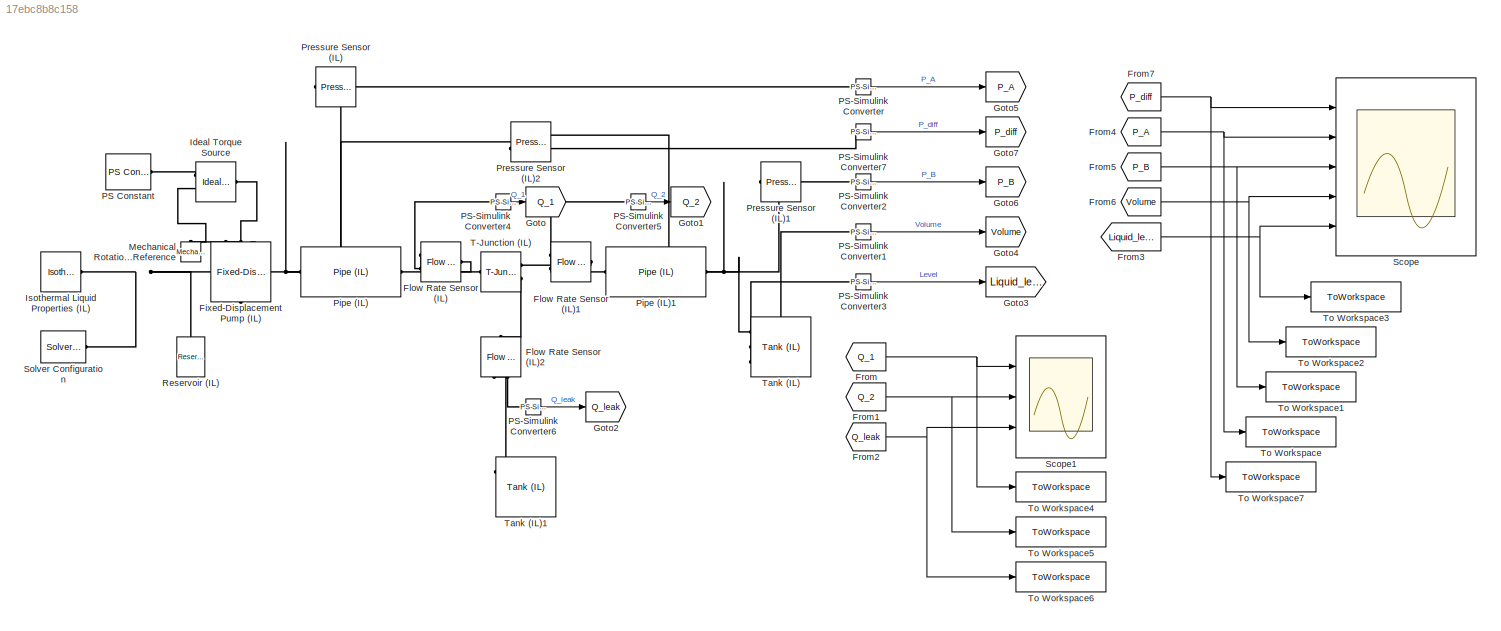
MODEL slx_17ebc8b8c158
KIND model
CONFIG AbsTol = 1e-3
CONFIG EnableMultiTasking = off
CONFIG FixedStep = auto
CONFIG MaxStep = auto
CONFIG MinStep = auto
CONFIG RelTol = 1e-3
CONFIG SampleTimeConstraint = Unconstrained
CONFIG SolverName = VariableStepAuto
CONFIG StartTime = 0.0
CONFIG StopTime = 5
BLOCK [Reference] Fixed-Displacement Pump (IL)  REF=SimscapeFluids_lib/Isothermal Liquid/Pumps & Motors/Fixed-Displacement
Pump (IL)
  NameLocation = left
  Ports = [0, 0, 0, 0, 0, 1, 3]
  SourceBlock = SimscapeFluids_lib/Isothermal Liquid/Pumps & Motors/Fixed-Displacement\nPump (IL)
  SourceProductBaseCode = SH
  SourceType = Fixed-Displacement\nPump (IL)
BLOCK [Reference] Flow Rate Sensor (IL)  REF=fl_lib/Isothermal Liquid/Sensors/Flow Rate Sensor
(IL)
  Ports = [0, 0, 0, 0, 0, 1, 2]
  SourceBlock = fl_lib/Isothermal Liquid/Sensors/Flow Rate Sensor\n(IL)
  SourceProductBaseCode = PW,SS,VE
  SourceType = Flow Rate Sensor\n(IL)
BLOCK [Reference] Flow Rate Sensor (IL)1  REF=fl_lib/Isothermal Liquid/Sensors/Flow Rate Sensor
(IL)
  Ports = [0, 0, 0, 0, 0, 1, 2]
  SourceBlock = fl_lib/Isothermal Liquid/Sensors/Flow Rate Sensor\n(IL)
  SourceProductBaseCode = PW,SS,VE
  SourceType = Flow Rate Sensor\n(IL)
BLOCK [Reference] Flow Rate Sensor (IL)2  REF=fl_lib/Isothermal Liquid/Sensors/Flow Rate Sensor
(IL)
  NameLocation = left
  Ports = [0, 0, 0, 0, 0, 1, 2]
  SourceBlock = fl_lib/Isothermal Liquid/Sensors/Flow Rate Sensor\n(IL)
  SourceProductBaseCode = PW,SS,VE
  SourceType = Flow Rate Sensor\n(IL)
BLOCK [From] From
  GotoTag = Q_1
BLOCK [From] From1
  GotoTag = Q_2
BLOCK [From] From2
  GotoTag = Q_leak
BLOCK [From] From3
  GotoTag = Liquid_level
BLOCK [From] From4
  GotoTag = P_A
BLOCK [From] From5
  GotoTag = P_B
BLOCK [From] From6
  GotoTag = Volume
BLOCK [From] From7
  GotoTag = P_diff
BLOCK [Goto] Goto
  GotoTag = Q_1
BLOCK [Goto] Goto1
  GotoTag = Q_2
BLOCK [Goto] Goto2
  GotoTag = Q_leak
BLOCK [Goto] Goto3
  GotoTag = Liquid_level
BLOCK [Goto] Goto4
  GotoTag = Volume
BLOCK [Goto] Goto5
  GotoTag = P_A
BLOCK [Goto] Goto6
  GotoTag = P_B
BLOCK [Goto] Goto7
  GotoTag = P_diff
BLOCK [Reference] Ideal Torque Source  REF=fl_lib/Mechanical/Mechanical Sources/Ideal Torque Source
  Ports = [0, 0, 0, 0, 0, 1, 2]
  SourceBlock = fl_lib/Mechanical/Mechanical Sources/Ideal Torque Source
  SourceProductBaseCode = PW,SS,VE
  SourceType = Ideal Torque Source
BLOCK [Reference] Isothermal Liquid Properties (IL)  REF=fl_lib/Isothermal Liquid/Utilities/Isothermal Liquid
Properties (IL)
  Ports = [0, 0, 0, 0, 0, 0, 1]
  SourceBlock = fl_lib/Isothermal Liquid/Utilities/Isothermal Liquid\nProperties (IL)
  SourceProductBaseCode = PW,SS,VE
  SourceType = Isothermal Liquid\nProperties (IL)
BLOCK [Reference] Mechanical Rotational Reference  REF=fl_lib/Mechanical/Rotational Elements/Mechanical
Rotational Reference
  NameLocation = right
  Ports = [0, 0, 0, 0, 0, 1]
  SourceBlock = fl_lib/Mechanical/Rotational Elements/Mechanical\nRotational Reference
  SourceProductBaseCode = PW,SS,VE
  SourceType = Mechanical\nRotational Reference
BLOCK [Reference] PS Constant  REF=fl_lib/Physical Signals/Sources/PS Constant
  Ports = [0, 0, 0, 0, 0, 0, 1]
  SourceBlock = fl_lib/Physical Signals/Sources/PS Constant
  SourceProductBaseCode = PW,SS,VE
  SourceType = PS Constant
BLOCK [Reference] PS-Simulink Converter  REF=nesl_utility/PS-Simulink
Converter
  Ports = [0, 1, 0, 0, 0, 1]
  SourceBlock = nesl_utility/PS-Simulink\nConverter
  SourceProductBaseCode = SS,PW,VE
  SourceType = PS-Simulink\nConverter
BLOCK [Reference] PS-Simulink Converter1  REF=nesl_utility/PS-Simulink
Converter
  Ports = [0, 1, 0, 0, 0, 1]
  SourceBlock = nesl_utility/PS-Simulink\nConverter
  SourceProductBaseCode = SS,PW,VE
  SourceType = PS-Simulink\nConverter
BLOCK [Reference] PS-Simulink Converter2  REF=nesl_utility/PS-Simulink
Converter
  Ports = [0, 1, 0, 0, 0, 1]
  SourceBlock = nesl_utility/PS-Simulink\nConverter
  SourceProductBaseCode = SS,PW,VE
  SourceType = PS-Simulink\nConverter
BLOCK [Reference] PS-Simulink Converter3  REF=nesl_utility/PS-Simulink
Converter
  Ports = [0, 1, 0, 0, 0, 1]
  SourceBlock = nesl_utility/PS-Simulink\nConverter
  SourceProductBaseCode = SS,PW,VE
  SourceType = PS-Simulink\nConverter
BLOCK [Reference] PS-Simulink Converter4  REF=nesl_utility/PS-Simulink
Converter
  Ports = [0, 1, 0, 0, 0, 1]
  SourceBlock = nesl_utility/PS-Simulink\nConverter
  SourceProductBaseCode = SS,PW,VE
  SourceType = PS-Simulink\nConverter
BLOCK [Reference] PS-Simulink Converter5  REF=nesl_utility/PS-Simulink
Converter
  Ports = [0, 1, 0, 0, 0, 1]
  SourceBlock = nesl_utility/PS-Simulink\nConverter
  SourceProductBaseCode = SS,PW,VE
  SourceType = PS-Simulink\nConverter
BLOCK [Reference] PS-Simulink Converter6  REF=nesl_utility/PS-Simulink
Converter
  Ports = [0, 1, 0, 0, 0, 1]
  SourceBlock = nesl_utility/PS-Simulink\nConverter
  SourceProductBaseCode = SS,PW,VE
  SourceType = PS-Simulink\nConverter
BLOCK [Reference] PS-Simulink Converter7  REF=nesl_utility/PS-Simulink
Converter
  Ports = [0, 1, 0, 0, 0, 1]
  SourceBlock = nesl_utility/PS-Simulink\nConverter
  SourceProductBaseCode = SS,PW,VE
  SourceType = PS-Simulink\nConverter
BLOCK [Reference] Pipe (IL)  REF=SimscapeFluids_lib/Isothermal Liquid/Pipes & Fittings/Pipe (IL)
  Ports = [0, 0, 0, 0, 0, 1, 1]
  SourceBlock = SimscapeFluids_lib/Isothermal Liquid/Pipes & Fittings/Pipe (IL)
  SourceProductBaseCode = SH
  SourceType = Pipe (IL)
BLOCK [Reference] Pipe (IL)1  REF=SimscapeFluids_lib/Isothermal Liquid/Pipes & Fittings/Pipe (IL)
  Ports = [0, 0, 0, 0, 0, 1, 1]
  SourceBlock = SimscapeFluids_lib/Isothermal Liquid/Pipes & Fittings/Pipe (IL)
  SourceProductBaseCode = SH
  SourceType = Pipe (IL)
BLOCK [Reference] Pressure Sensor (IL)  REF=fl_lib/Isothermal Liquid/Sensors/Pressure Sensor (IL)
  Ports = [0, 0, 0, 0, 0, 1, 1]
  SourceBlock = fl_lib/Isothermal Liquid/Sensors/Pressure Sensor (IL)
  SourceProductBaseCode = PW,SS,VE
  SourceType = Pressure Sensor (IL)
BLOCK [Reference] Pressure Sensor (IL)1  REF=fl_lib/Isothermal Liquid/Sensors/Pressure Sensor (IL)
  Ports = [0, 0, 0, 0, 0, 1, 1]
  SourceBlock = fl_lib/Isothermal Liquid/Sensors/Pressure Sensor (IL)
  SourceProductBaseCode = PW,SS,VE
  SourceType = Pressure Sensor (IL)
BLOCK [Reference] Pressure Sensor (IL)2  REF=fl_lib/Isothermal Liquid/Sensors/Pressure Sensor (IL)
  Ports = [0, 0, 0, 0, 0, 1, 2]
  SourceBlock = fl_lib/Isothermal Liquid/Sensors/Pressure Sensor (IL)
  SourceProductBaseCode = PW,SS,VE
  SourceType = Pressure Sensor (IL)
BLOCK [Reference] Reservoir (IL)  REF=fl_lib/Isothermal Liquid/Elements/Reservoir (IL)
  NameLocation = right
  Ports = [0, 0, 0, 0, 0, 1]
  SourceBlock = fl_lib/Isothermal Liquid/Elements/Reservoir (IL)
  SourceProductBaseCode = PW,SS,VE
  SourceType = Reservoir (IL)
BLOCK [Scope] Scope
  Floating = off
  NumInputPorts = 5
  Ports = [5]
  ScopeSpecificationString = Simulink.scopes.TimeScopeBlockCfg('CurrentConfiguration', extmgr.ConfigurationSet(extmgr.Configuration('Core','General UI',true),extmgr.Configuration('Core','Source UI',true),extmgr.Configuration('Sources','WiredSimulink',true),extmgr.Configuration('Visuals','Time Domain',true,'SerializedDisplays',{struct('MinYLimReal','-1.00000','MaxYLimReal','1.00000','YLabelReal','','MinYLimMag','0.00000','MaxY...<+3615ch>
BLOCK [Scope] Scope1
  Floating = off
  NumInputPorts = 3
  Ports = [3]
  ScopeSpecificationString = Simulink.scopes.TimeScopeBlockCfg('CurrentConfiguration', extmgr.ConfigurationSet(extmgr.Configuration('Core','General UI',true),extmgr.Configuration('Core','Source UI',true),extmgr.Configuration('Sources','WiredSimulink',true,'DataLoggingVariableName','ScopeData1'),extmgr.Configuration('Visuals','Time Domain',true,'SerializedDisplays',{struct('MinYLimReal','-180.52363','MaxYLimReal','777.03776','...<+1496ch>
BLOCK [Reference] Solver Configuration  REF=nesl_utility/Solver
Configuration
  Ports = [0, 0, 0, 0, 0, 0, 1]
  SourceBlock = nesl_utility/Solver\nConfiguration
  SourceProductBaseCode = SS,PW,VE
  SourceType = Solver\nConfiguration
BLOCK [Reference] T-Junction (IL)  REF=SimscapeFluids_lib/Isothermal Liquid/Pipes & Fittings/T-Junction (IL)
  Ports = [0, 0, 0, 0, 0, 1, 2]
  SourceBlock = SimscapeFluids_lib/Isothermal Liquid/Pipes & Fittings/T-Junction (IL)
  SourceProductBaseCode = SH
  SourceType = T-Junction (IL)
BLOCK [Reference] Tank (IL)  REF=SimscapeFluids_lib/Isothermal Liquid/Tanks & Accumulators/Tank (IL)
  Ports = [0, 0, 0, 0, 0, 3]
  SourceBlock = SimscapeFluids_lib/Isothermal Liquid/Tanks & Accumulators/Tank (IL)
  SourceProductBaseCode = SH
  SourceType = Tank (IL)
BLOCK [Reference] Tank (IL)1  REF=SimscapeFluids_lib/Isothermal Liquid/Tanks & Accumulators/Tank (IL)
  Ports = [0, 0, 0, 0, 0, 3]
  SourceBlock = SimscapeFluids_lib/Isothermal Liquid/Tanks & Accumulators/Tank (IL)
  SourceProductBaseCode = SH
  SourceType = Tank (IL)
BLOCK [ToWorkspace] To Workspace
  FixptAsFi = on
  MaxDataPoints = inf
  Ports = [1]
  SampleTime = -1
  SaveFormat = Timeseries
  VariableName = P_A
BLOCK [ToWorkspace] To Workspace1
  FixptAsFi = on
  MaxDataPoints = inf
  Ports = [1]
  SampleTime = -1
  SaveFormat = Timeseries
  VariableName = P_B
BLOCK [ToWorkspace] To Workspace2
  FixptAsFi = on
  MaxDataPoints = inf
  Ports = [1]
  SampleTime = -1
  SaveFormat = Timeseries
  VariableName = V_out
BLOCK [ToWorkspace] To Workspace3
  FixptAsFi = on
  MaxDataPoints = inf
  Ports = [1]
  SampleTime = -1
  SaveFormat = Timeseries
  VariableName = h_out
BLOCK [ToWorkspace] To Workspace4
  FixptAsFi = on
  MaxDataPoints = inf
  Ports = [1]
  SampleTime = -1
  SaveFormat = Timeseries
  VariableName = Q_1
BLOCK [ToWorkspace] To Workspace5
  FixptAsFi = on
  MaxDataPoints = inf
  Ports = [1]
  SampleTime = -1
  SaveFormat = Timeseries
  VariableName = Q_2
BLOCK [ToWorkspace] To Workspace6
  FixptAsFi = on
  MaxDataPoints = inf
  Ports = [1]
  SampleTime = -1
  SaveFormat = Timeseries
  VariableName = Q_leak
BLOCK [ToWorkspace] To Workspace7
  FixptAsFi = on
  MaxDataPoints = inf
  Ports = [1]
  SampleTime = -1
  SaveFormat = Timeseries
  VariableName = P_diff
NET From1:1 -> Scope1:2, To Workspace5:1
NET From2:1 -> Scope1:3, To Workspace6:1
NET From3:1 -> Scope:5, To Workspace3:1
NET From4:1 -> Scope:2, To Workspace:1
NET From5:1 -> Scope:3, To Workspace1:1
NET From6:1 -> Scope:4, To Workspace2:1
NET From7:1 -> Scope:1, To Workspace7:1
NET From:1 -> Scope1:1, To Workspace4:1
LINE PS-Simulink Converter1:1 -> Goto4:1
LINE PS-Simulink Converter2:1 -> Goto6:1
LINE PS-Simulink Converter3:1 -> Goto3:1
LINE PS-Simulink Converter4:1 -> Goto:1
LINE PS-Simulink Converter5:1 -> Goto1:1
LINE PS-Simulink Converter6:1 -> Goto2:1
LINE PS-Simulink Converter7:1 -> Goto7:1
LINE PS-Simulink Converter:1 -> Goto5:1
PNET net1: Fixed-Displacement Pump (IL):LConn1 -- Pipe (IL):LConn1 -- Pressure Sensor (IL)2:LConn1 -- Pressure Sensor (IL):LConn1
PLINE Fixed-Displacement Pump (IL):RConn1 -- Ideal Torque Source:LConn1
PNET net2: Fixed-Displacement Pump (IL):RConn2 -- Ideal Torque Source:RConn2 -- Mechanical Rotational Reference:LConn1
PNET net3: Fixed-Displacement Pump (IL):RConn3 -- Isothermal Liquid Properties (IL):RConn1 -- Reservoir (IL):LConn1 -- Solver Configuration:RConn1
PLINE Flow Rate Sensor (IL)1:LConn1 -- T-Junction (IL):RConn1
PLINE Flow Rate Sensor (IL)1:RConn1 -- Pipe (IL)1:LConn1
PLINE Flow Rate Sensor (IL)1:RConn2 -- PS-Simulink Converter5:LConn1
PLINE Flow Rate Sensor (IL)2:LConn1 -- T-Junction (IL):RConn2
PLINE Flow Rate Sensor (IL)2:RConn1 -- Tank (IL)1:LConn1
PLINE Flow Rate Sensor (IL)2:RConn2 -- PS-Simulink Converter6:LConn1
PLINE Flow Rate Sensor (IL):LConn1 -- Pipe (IL):RConn1
PLINE Flow Rate Sensor (IL):RConn1 -- T-Junction (IL):LConn1
PLINE Flow Rate Sensor (IL):RConn2 -- PS-Simulink Converter4:LConn1
PLINE Ideal Torque Source:RConn1 -- PS Constant:RConn1
PLINE PS-Simulink Converter1:LConn1 -- Tank (IL):LConn2
PLINE PS-Simulink Converter2:LConn1 -- Pressure Sensor (IL)1:RConn1
PLINE PS-Simulink Converter3:LConn1 -- Tank (IL):LConn3
PLINE PS-Simulink Converter7:LConn1 -- Pressure Sensor (IL)2:RConn2
PLINE PS-Simulink Converter:LConn1 -- Pressure Sensor (IL):RConn1
PNET net4: Pipe (IL)1:RConn1 -- Pressure Sensor (IL)1:LConn1 -- Pressure Sensor (IL)2:RConn1 -- Tank (IL):LConn1
note: NET lines group one-source signal fan-out (src -> all destinations, sorted); 1:1 wires keep LINE; PNET lines group multi-terminal physical nets as a canonical sorted terminal list (undirected conserving connections); 2-terminal nets keep the pairwise PLINE form
